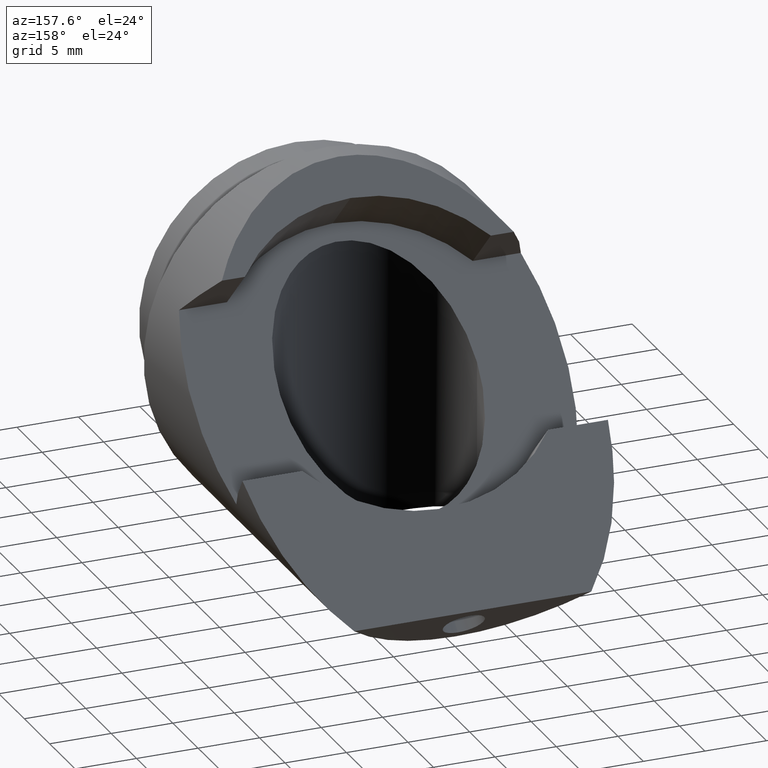
[diagram: clean part render]
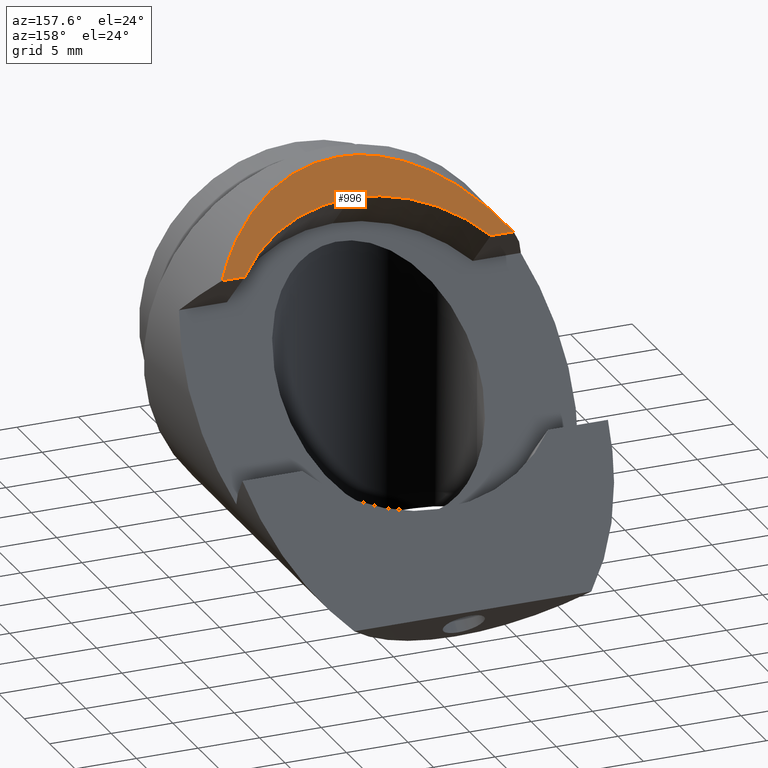
[diagram: same view with one face highlighted and labeled with its STEP entity id]
A machine part, auxiliary view. The second image highlights one B-rep face of the part: STEP entity #996.
In plain terms, the highlighted planar face has unit normal (0, 0.7071, 0.7071).
Its self-contained STEP definition (entity closure, byte-faithful):
#8 = VERTEX_POINT ( 'NONE', #972 ) ;
#14 = EDGE_CURVE ( 'NONE', #966, #573, #567, .T. ) ;
#39 = CARTESIAN_POINT ( 'NONE',  ( -4.720855478036189500, 2.000000000000001800, 15.00000000000000000 ) ) ;
#46 = ORIENTED_EDGE ( 'NONE', *, *, #586, .T. ) ;
#52 = CARTESIAN_POINT ( 'NONE',  ( 0.0000000000000000000, 13.46446609406720900, 3.535533905932731100 ) ) ;
#59 = EDGE_CURVE ( 'NONE', #99, #8, #466, .T. ) ;
#65 = DIRECTION ( 'NONE',  ( 0.0000000000000000000, -0.7071067811865439100, 0.7071067811865512400 ) ) ;
#99 = VERTEX_POINT ( 'NONE', #116 ) ;
#103 = VECTOR ( 'NONE', #348, 1000.000000000000000 ) ;
#116 = CARTESIAN_POINT ( 'NONE',  ( 0.0000000000000000000, 4.413499294879401600, 12.58650070512053900 ) ) ;
#117 = CARTESIAN_POINT ( 'NONE',  ( 80.54744331758767800, 7.807611844574621400, 9.192388155425320000 ) ) ;
#128 = PLANE ( 'NONE',  #154 ) ;
#151 = EDGE_LOOP ( 'NONE', ( #227, #622, #432, #46, #583, #967 ) ) ;
#154 = AXIS2_PLACEMENT_3D ( 'NONE', #849, #774, #65 ) ;
#227 = ORIENTED_EDGE ( 'NONE', *, *, #429, .T. ) ;
#242 = AXIS2_PLACEMENT_3D ( 'NONE', #357, #918, #440 ) ;
#258 = CIRCLE ( 'NONE', #645, 12.80000000000000100 ) ;
#292 = CARTESIAN_POINT ( 'NONE',  ( 1.836970198721029600E-015, 2.000000000000001800, 15.00000000000000000 ) ) ;
#319 = LINE ( 'NONE', #410, #618 ) ;
#348 = DIRECTION ( 'NONE',  ( -1.000000000000000000, 0.0000000000000000000, 0.0000000000000000000 ) ) ;
#357 = CARTESIAN_POINT ( 'NONE',  ( 0.0000000000000000000, 13.46446609406720900, 3.535533905932731100 ) ) ;
#410 = CARTESIAN_POINT ( 'NONE',  ( 80.54744331758767800, 7.807611844574621400, 9.192388155425320000 ) ) ;
#417 = FACE_OUTER_BOUND ( 'NONE', #151, .T. ) ;
#427 = CARTESIAN_POINT ( 'NONE',  ( 1.836970198721029600E-015, 2.000000000000001800, 15.00000000000000000 ) ) ;
#429 = EDGE_CURVE ( 'NONE', #769, #8, #319, .T. ) ;
#432 = ORIENTED_EDGE ( 'NONE', *, *, #551, .F. ) ;
#440 = DIRECTION ( 'NONE',  ( 0.0000000000000000000, -0.7071067811865474600, 0.7071067811865475700 ) ) ;
#454 = CARTESIAN_POINT ( 'NONE',  ( 11.85326959112958900, 7.807611844574621400, 9.192388155425320000 ) ) ;
#456 = CARTESIAN_POINT ( 'NONE',  ( -11.85326959112950500, 7.807611844574621400, 9.192388155425320000 ) ) ;
#466 = CIRCLE ( 'NONE', #242, 12.80000000000000100 ) ;
#502 = CARTESIAN_POINT ( 'NONE',  ( -8.960207192477884800, 4.077106999113070200, 12.92289300088691000 ) ) ;
#551 = EDGE_CURVE ( 'NONE', #770, #99, #258, .T. ) ;
#567 =( BOUNDED_CURVE ( )  B_SPLINE_CURVE ( 3, ( #900, #502, #39, #427 ),
 .UNSPECIFIED., .F., .F. ) 
 B_SPLINE_CURVE_WITH_KNOTS ( ( 4, 4 ),
 ( 5.372020706668941200, 6.283185307179586200 ),
 .UNSPECIFIED. ) 
 CURVE ( )  GEOMETRIC_REPRESENTATION_ITEM ( )  RATIONAL_B_SPLINE_CURVE ( ( 1.000000000000000000, 0.9320033179247989600, 0.9320033179247989600, 1.000000000000000000 ) ) 
 REPRESENTATION_ITEM ( '' )  );
#573 = VERTEX_POINT ( 'NONE', #292 ) ;
#575 = DIRECTION ( 'NONE',  ( -1.000000000000000000, 0.0000000000000000000, 0.0000000000000000000 ) ) ;
#583 = ORIENTED_EDGE ( 'NONE', *, *, #14, .T. ) ;
#586 = EDGE_CURVE ( 'NONE', #770, #966, #948, .T. ) ;
#607 = DIRECTION ( 'NONE',  ( -0.0000000000000000000, 0.7071067811865475700, 0.7071067811865474600 ) ) ;
#618 = VECTOR ( 'NONE', #575, 1000.000000000000000 ) ;
#622 = ORIENTED_EDGE ( 'NONE', *, *, #59, .F. ) ;
#645 = AXIS2_PLACEMENT_3D ( 'NONE', #52, #607, #670 ) ;
#648 =( BOUNDED_CURVE ( )  B_SPLINE_CURVE ( 3, ( #999, #685, #837, #695 ),
 .UNSPECIFIED., .F., .T. ) 
 B_SPLINE_CURVE_WITH_KNOTS ( ( 4, 4 ),
 ( 1.224646799147353000E-016, 0.9111646005106482900 ),
 .UNSPECIFIED. ) 
 CURVE ( )  GEOMETRIC_REPRESENTATION_ITEM ( )  RATIONAL_B_SPLINE_CURVE ( ( 1.000000000000000000, 0.9320033179247985100, 0.9320033179247985100, 1.000000000000000000 ) ) 
 REPRESENTATION_ITEM ( '' )  );
#670 = DIRECTION ( 'NONE',  ( 0.0000000000000000000, -0.7071067811865474600, 0.7071067811865475700 ) ) ;
#685 = CARTESIAN_POINT ( 'NONE',  ( 4.720855478036206400, 2.000000000000002200, 15.00000000000000000 ) ) ;
#695 = CARTESIAN_POINT ( 'NONE',  ( 11.85326959112958900, 7.807611844574621400, 9.192388155425320000 ) ) ;
#769 = VERTEX_POINT ( 'NONE', #454 ) ;
#770 = VERTEX_POINT ( 'NONE', #1002 ) ;
#774 = DIRECTION ( 'NONE',  ( 0.0000000000000000000, 0.7071067811865512400, 0.7071067811865439100 ) ) ;
#837 = CARTESIAN_POINT ( 'NONE',  ( 8.960207192477913200, 4.077106999113083500, 12.92289300088689600 ) ) ;
#849 = CARTESIAN_POINT ( 'NONE',  ( 80.54744331758767800, 2.000000000000001800, 15.00000000000000000 ) ) ;
#900 = CARTESIAN_POINT ( 'NONE',  ( -11.85326959112950500, 7.807611844574621400, 9.192388155425320000 ) ) ;
#918 = DIRECTION ( 'NONE',  ( -0.0000000000000000000, 0.7071067811865475700, 0.7071067811865474600 ) ) ;
#924 = EDGE_CURVE ( 'NONE', #573, #769, #648, .T. ) ;
#948 = LINE ( 'NONE', #117, #103 ) ;
#966 = VERTEX_POINT ( 'NONE', #456 ) ;
#967 = ORIENTED_EDGE ( 'NONE', *, *, #924, .T. ) ;
#972 = CARTESIAN_POINT ( 'NONE',  ( 9.991996797437233000, 7.807611844574652500, 9.192388155425289800 ) ) ;
#996 = ADVANCED_FACE ( 'NONE', ( #417 ), #128, .T. ) ;
#999 = CARTESIAN_POINT ( 'NONE',  ( 1.836970198721029600E-015, 2.000000000000001800, 15.00000000000000000 ) ) ;
#1002 = CARTESIAN_POINT ( 'NONE',  ( -9.991996797437233000, 7.807611844574652500, 9.192388155425289800 ) ) ;